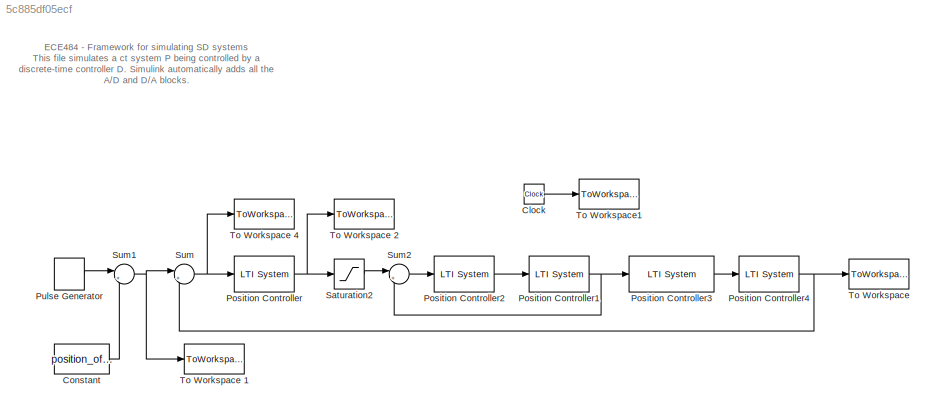
MODEL slx_5c885df05ecf
KIND model
CONFIG AbsTol = 1e-12
CONFIG EnableMultiTasking = on
CONFIG FixedStep = T
CONFIG MaxStep = 0.01
CONFIG MinStep = auto
CONFIG RelTol = 1e-12
CONFIG SampleTimeConstraint = Unconstrained
CONFIG SolverName = ode45
CONFIG StartTime = 0.0
CONFIG StopTime = tfinal
BLOCK [Clock] Clock
BLOCK [Constant] Constant
  Value = position_offset
BLOCK [Reference] Position Controller  REF=cstblocks/LTI System
  Ports = [1, 1]
  SourceBlock = cstblocks/LTI System
  SourceProductBaseCode = CT
  SourceType = LTI Block
BLOCK [Reference] Position Controller1  REF=cstblocks/LTI System
  Ports = [1, 1]
  SourceBlock = cstblocks/LTI System
  SourceProductBaseCode = CT
  SourceType = LTI Block
BLOCK [Reference] Position Controller2  REF=cstblocks/LTI System
  Ports = [1, 1]
  SourceBlock = cstblocks/LTI System
  SourceProductBaseCode = CT
  SourceType = LTI Block
BLOCK [Reference] Position Controller3  REF=cstblocks/LTI System
  Ports = [1, 1]
  SourceBlock = cstblocks/LTI System
  SourceProductBaseCode = CT
  SourceType = LTI Block
BLOCK [Reference] Position Controller4  REF=cstblocks/LTI System
  Ports = [1, 1]
  SourceBlock = cstblocks/LTI System
  SourceProductBaseCode = CT
  SourceType = LTI Block
BLOCK [DiscretePulseGenerator] Pulse Generator
  Amplitude = position_amplitude
  Period = period
  Ports = [0, 1]
  PulseType = Time based
  PulseWidth = 50
  SampleTime = T
BLOCK [Saturate] Saturation2
  LowerLimit = -0.7
  UpperLimit = 0.7
BLOCK [Sum] Sum
  Inputs = |+-
  Ports = [2, 1]
BLOCK [Sum] Sum1
  Inputs = |++
  Ports = [2, 1]
BLOCK [Sum] Sum2
  Inputs = |+-
  Ports = [2, 1]
BLOCK [ToWorkspace] To Workspace
  MaxDataPoints = inf
  Ports = [1]
  SampleTime = T
  VariableName = y
BLOCK [ToWorkspace] To Workspace 1
  MaxDataPoints = inf
  Ports = [1]
  SampleTime = T
  VariableName = y_ref
BLOCK [ToWorkspace] To Workspace 2
  MaxDataPoints = inf
  Ports = [1]
  SampleTime = T
  VariableName = theta
BLOCK [ToWorkspace] To Workspace 4
  MaxDataPoints = inf
  Ports = [1]
  SampleTime = T
  VariableName = y_error
BLOCK [ToWorkspace] To Workspace1
  MaxDataPoints = inf
  Ports = [1]
  SampleTime = T
  VariableName = t_sim
ANNOTATION (root): ECE484 - Framework for simulating SD systems This file simulates a ct system P being controlled by a discrete-time controller D. Simulink automatically adds all the A/D and D/A blocks.
LINE Clock:1 -> To Workspace1:1
LINE Constant:1 -> Sum1:2
NET Position Controller1:1 -> Position Controller3:1, Sum2:2
LINE Position Controller2:1 -> Position Controller1:1
LINE Position Controller3:1 -> Position Controller4:1
NET Position Controller4:1 -> Sum:2, To Workspace:1
NET Position Controller:1 -> Saturation2:1, To Workspace 2:1
LINE Pulse Generator:1 -> Sum1:1
LINE Saturation2:1 -> Sum2:1
NET Sum1:1 -> Sum:1, To Workspace 1:1
LINE Sum2:1 -> Position Controller2:1
NET Sum:1 -> Position Controller:1, To Workspace 4:1
note: NET lines group one-source signal fan-out (src -> all destinations, sorted); 1:1 wires keep LINE
